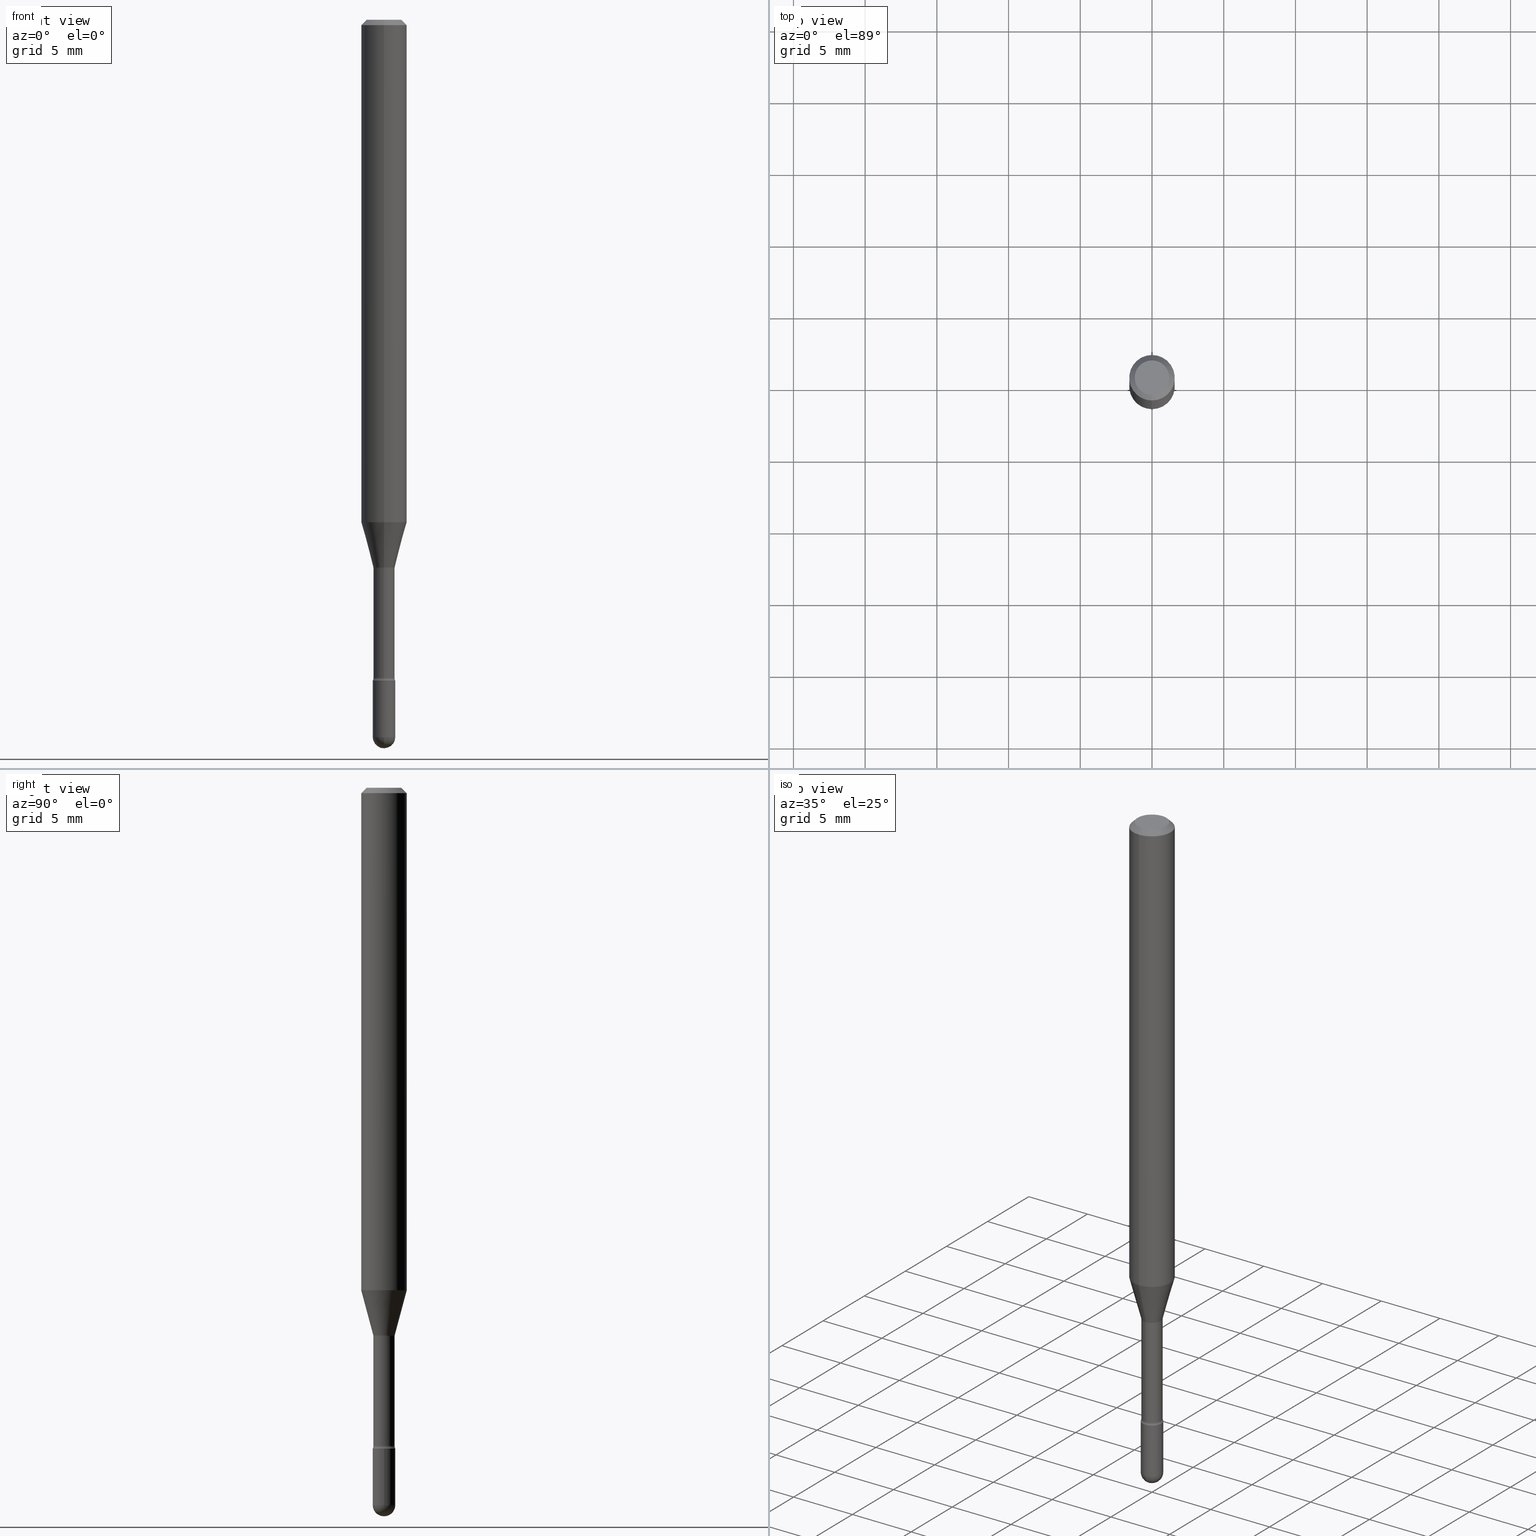
[diagram: canonical four-view strip — front | top / right | iso, engineering-drawing reading convention]
A machine part, canonical four-view strip (front | top / right | iso — engineering-drawing reading convention). The complete STEP part file that produces these views, byte-faithful:
ISO-10303-21;
HEADER;
FILE_DESCRIPTION (( 'STEP AP203' ),
    '1' );
FILE_NAME ('09811.STEP',
    '2024-04-10T01:41:04',
    ( '' ),
    ( '' ),
    'SwSTEP 2.0',
    'SolidWorks 2023',
    '' );
FILE_SCHEMA (( 'CONFIG_CONTROL_DESIGN' ));
ENDSEC;

DATA;
#1 = ADVANCED_FACE ( 'NONE', ( #394 ), #281, .T. ) ;
#2 = DIRECTION ( 'NONE',  ( -2.445468806185136597E-29, 3.491481338843145583E-15, 1.000000000000000000 ) ) ;
#3 = DIRECTION ( 'NONE',  ( -6.982962677686265922E-15, -1.000000000000000000, 3.491481724708022239E-15 ) ) ;
#4 = AXIS2_PLACEMENT_3D ( 'NONE', #178, #512, #491 ) ;
#5 = LOCAL_TIME ( 21, 41, 4.000000000000000000, #289 ) ;
#6 = APPROVAL_ROLE ( '' ) ;
#7 = PERSON_AND_ORGANIZATION_ROLE ( 'classification_officer' ) ;
#8 = MECHANICAL_CONTEXT ( 'NONE', #88, 'mechanical' ) ;
#9 = VECTOR ( 'NONE', #386, 39.37007874015748143 ) ;
#10 = VERTEX_POINT ( 'NONE', #444 ) ;
#11 = CARTESIAN_POINT ( 'NONE',  ( 4.440892098500625669E-16, 0.06250000000000000000, 2.598557910969947226E-16 ) ) ;
#12 = VERTEX_POINT ( 'NONE', #231 ) ;
#13 = ADVANCED_FACE ( 'NONE', ( #493 ), #363, .T. ) ;
#14 =( NAMED_UNIT ( * ) PLANE_ANGLE_UNIT ( ) SI_UNIT ( $, .RADIAN. ) );
#15 = UNCERTAINTY_MEASURE_WITH_UNIT (LENGTH_MEASURE( 1.000000000000000082E-05 ), #447, 'distance_accuracy_value', 'NONE');
#16 = ORIENTED_EDGE ( 'NONE', *, *, #404, .F. ) ;
#17 = CARTESIAN_POINT ( 'NONE',  ( 3.668202805105720472E-31, -5.237222587062061363E-17, -0.01500000000000008271 ) ) ;
#18 = APPLICATION_CONTEXT ( 'configuration controlled 3d designs of mechanical parts and assemblies' ) ;
#19 = ADVANCED_FACE ( 'NONE', ( #193 ), #467, .T. ) ;
#20 = CC_DESIGN_PERSON_AND_ORGANIZATION_ASSIGNMENT ( #372, #244, ( #488 ) ) ;
#21 = DIRECTION ( 'NONE',  ( -2.445468536737133447E-29, 3.491481724708021844E-15, 1.000000000000000000 ) ) ;
#22 = SPHERICAL_SURFACE ( 'NONE', #272, 0.03100000000000001019 ) ;
#23 = AXIS2_PLACEMENT_3D ( 'NONE', #448, #530, #64 ) ;
#24 = AXIS2_PLACEMENT_3D ( 'NONE', #435, #274, #35 ) ;
#25 = ORGANIZATION ( 'UNSPECIFIED', 'UNSPECIFIED', '' ) ;
#26 = CARTESIAN_POINT ( 'NONE',  ( 3.682813959862141921E-29, -5.258083448300944094E-15, -1.505974787463811193 ) ) ;
#27 = ORIENTED_EDGE ( 'NONE', *, *, #241, .F. ) ;
#28 = CARTESIAN_POINT ( 'NONE',  ( 4.815128079378534076E-29, -6.874726756182154000E-15, -1.969000000000000306 ) ) ;
#29 = EDGE_CURVE ( 'NONE', #126, #60, #77, .T. ) ;
#30 = DIRECTION ( 'NONE',  ( -2.445468536737133167E-29, 3.491481724708022239E-15, 1.000000000000000000 ) ) ;
#31 = DIRECTION ( 'NONE',  ( -6.982962677686266711E-15, -1.000000000000000000, 3.491481724708022633E-15 ) ) ;
#32 = AXIS2_PLACEMENT_3D ( 'NONE', #17, #71, #117 ) ;
#33 = AXIS2_PLACEMENT_3D ( 'NONE', #269, #2, #322 ) ;
#34 = FACE_OUTER_BOUND ( 'NONE', #120, .T. ) ;
#35 = DIRECTION ( 'NONE',  ( -6.982962677686267499E-15, -1.000000000000000000, 0.000000000000000000 ) ) ;
#36 = ORIENTED_EDGE ( 'NONE', *, *, #217, .T. ) ;
#37 = CARTESIAN_POINT ( 'NONE',  ( 3.682814365644040998E-29, -5.258082867198169507E-15, -1.505974787463811193 ) ) ;
#38 = ORIENTED_EDGE ( 'NONE', *, *, #350, .T. ) ;
#39 = EDGE_LOOP ( 'NONE', ( #45, #79, #156, #257 ) ) ;
#40 = CARTESIAN_POINT ( 'NONE',  ( 3.668202805105720472E-31, -5.237222587062061363E-17, -0.01500000000000008271 ) ) ;
#41 = AXIS2_PLACEMENT_3D ( 'NONE', #243, #310, #517 ) ;
#42 = CARTESIAN_POINT ( 'NONE',  ( 2.136957277798946103E-16, 0.02914999999999373301, -1.806783525791634704 ) ) ;
#43 = AXIS2_PLACEMENT_3D ( 'NONE', #167, #296, #415 ) ;
#44 = CIRCLE ( 'NONE', #113, 0.02914999999999999883 ) ;
#45 = ORIENTED_EDGE ( 'NONE', *, *, #509, .F. ) ;
#46 = FACE_OUTER_BOUND ( 'NONE', #303, .T. ) ;
#47 = CARTESIAN_POINT ( 'NONE',  ( 4.418432265018427708E-29, -6.308351660805017310E-15, -1.806783525791634704 ) ) ;
#48 = EDGE_CURVE ( 'NONE', #478, #12, #503, .T. ) ;
#49 = LINE ( 'NONE', #526, #187 ) ;
#50 = LENGTH_MEASURE_WITH_UNIT ( LENGTH_MEASURE( 0.02539999999999999897 ), #221 );
#51 = MANIFOLD_SOLID_BREP ( 'Body-Move/Copy2[1]', #214 ) ;
#52 = DIRECTION ( 'NONE',  ( 6.982962677686265922E-15, 1.000000000000000000, 0.000000000000000000 ) ) ;
#53 = CARTESIAN_POINT ( 'NONE',  ( -2.035533620545548103E-16, -0.02915000000000001965, 5.798500911664849019E-16 ) ) ;
#54 = APPROVAL_DATE_TIME ( #161, #440 ) ;
#55 = CIRCLE ( 'NONE', #410, 0.03099999999999999978 ) ;
#56 = LINE ( 'NONE', #534, #112 ) ;
#57 = DIRECTION ( 'NONE',  ( -2.445468536737133447E-29, 3.491481724708021844E-15, 1.000000000000000000 ) ) ;
#58 = ORIENTED_EDGE ( 'NONE', *, *, #195, .T. ) ;
#59 = DATE_AND_TIME ( #497, #249 ) ;
#60 = VERTEX_POINT ( 'NONE', #251 ) ;
#61 = DIRECTION ( 'NONE',  ( 1.839019923739594793E-15, 0.2588190451025241812, 0.9659258262890673130 ) ) ;
#62 = ORIENTED_EDGE ( 'NONE', *, *, #509, .T. ) ;
#63 = CC_DESIGN_DATE_AND_TIME_ASSIGNMENT ( #456, #107, ( #359 ) ) ;
#64 = DIRECTION ( 'NONE',  ( 1.000000000000000000, -6.982962677686266711E-15, 4.876176775795935232E-29 ) ) ;
#65 = PERSON_AND_ORGANIZATION ( #446, #25 ) ;
#66 = EDGE_CURVE ( 'NONE', #565, #60, #373, .T. ) ;
#67 = PERSON_AND_ORGANIZATION_ROLE ( 'design_owner' ) ;
#68 = VECTOR ( 'NONE', #547, 39.37007874015748143 ) ;
#69 = AXIS2_PLACEMENT_3D ( 'NONE', #546, #211, #382 ) ;
#70 = ORIENTED_EDGE ( 'NONE', *, *, #143, .T. ) ;
#71 = DIRECTION ( 'NONE',  ( -2.445468536737133447E-29, 3.491481724708021844E-15, 1.000000000000000000 ) ) ;
#72 = DIRECTION ( 'NONE',  ( -1.000000000000000000, 6.982962677686265922E-15, -4.883557194083112340E-29 ) ) ;
#73 = ORIENTED_EDGE ( 'NONE', *, *, #259, .T. ) ;
#74 = EDGE_CURVE ( 'NONE', #458, #429, #554, .T. ) ;
#75 = FACE_OUTER_BOUND ( 'NONE', #362, .T. ) ;
#76 = EDGE_LOOP ( 'NONE', ( #481, #170, #297, #529 ) ) ;
#77 = CIRCLE ( 'NONE', #32, 0.06250000000000000000 ) ;
#78 = CARTESIAN_POINT ( 'NONE',  ( 3.316907271900976096E-16, 0.04749999999999999362, 3.181781065051012070E-17 ) ) ;
#79 = ORIENTED_EDGE ( 'NONE', *, *, #74, .F. ) ;
#80 = ORIENTED_EDGE ( 'NONE', *, *, #237, .F. ) ;
#81 = DIRECTION ( 'NONE',  ( -6.982962677686265922E-15, -1.000000000000000000, 3.491481724708022239E-15 ) ) ;
#82 = DIRECTION ( 'NONE',  ( -6.982962677686265922E-15, -1.000000000000000000, 3.491481724708022239E-15 ) ) ;
#83 = ORIENTED_EDGE ( 'NONE', *, *, #237, .T. ) ;
#84 = DIRECTION ( 'NONE',  ( -6.982962677686265922E-15, -1.000000000000000000, 3.491481724708021844E-15 ) ) ;
#85 = AXIS2_PLACEMENT_3D ( 'NONE', #179, #391, #516 ) ;
#86 = LINE ( 'NONE', #53, #215 ) ;
#87 = CYLINDRICAL_SURFACE ( 'NONE', #292, 0.02915000000000001965 ) ;
#88 = APPLICATION_CONTEXT ( 'configuration controlled 3d designs of mechanical parts and assemblies' ) ;
#89 = ORIENTED_EDGE ( 'NONE', *, *, #29, .F. ) ;
#90 = DIRECTION ( 'NONE',  ( -2.445468536737133447E-29, 3.491481724708021844E-15, 1.000000000000000000 ) ) ;
#91 = DIRECTION ( 'NONE',  ( -6.982962677686265922E-15, -1.000000000000000000, 3.491481724708021844E-15 ) ) ;
#92 = AXIS2_PLACEMENT_3D ( 'NONE', #380, #474, #261 ) ;
#93 = ORIENTED_EDGE ( 'NONE', *, *, #334, .T. ) ;
#94 = DIRECTION ( 'NONE',  ( 7.105427357601001859E-15, 1.000000000000000000, 0.000000000000000000 ) ) ;
#95 = CARTESIAN_POINT ( 'NONE',  ( 4.440892098500961428E-16, 0.06249999999999515665, -1.379536105567578330 ) ) ;
#96 = ORIENTED_EDGE ( 'NONE', *, *, #464, .T. ) ;
#97 = CYLINDRICAL_SURFACE ( 'NONE', #23, 0.03099999999999999978 ) ;
#98 = ORIENTED_EDGE ( 'NONE', *, *, #130, .T. ) ;
#99 = ADVANCED_BREP_SHAPE_REPRESENTATION ( '09811', ( #51, #252, #300 ), #154 ) ;
#100 = VECTOR ( 'NONE', #425, 39.37007874015748143 ) ;
#101 = CARTESIAN_POINT ( 'NONE',  ( 4.436080414419837365E-29, -6.333547148661465016E-15, -1.813999999999999835 ) ) ;
#102 = APPROVAL_PERSON_ORGANIZATION ( #65, #321, #329 ) ;
#103 = DIRECTION ( 'NONE',  ( -6.982962677686265922E-15, -1.000000000000000000, 0.000000000000000000 ) ) ;
#104 = COORDINATED_UNIVERSAL_TIME_OFFSET ( 5, 0, .BEHIND. ) ;
#105 = DIRECTION ( 'NONE',  ( -2.438088387897960049E-29, 3.491481338843145188E-15, 1.000000000000000000 ) ) ;
#106 = CARTESIAN_POINT ( 'NONE',  ( 4.364351673553919652E-16, 0.06249999999999995143, -0.01500000000000030129 ) ) ;
#107 = DATE_TIME_ROLE ( 'classification_date' ) ;
#108 = EDGE_CURVE ( 'NONE', #181, #260, #523, .T. ) ;
#109 = VERTEX_POINT ( 'NONE', #42 ) ;
#110 = DIRECTION ( 'NONE',  ( 1.000000000000000000, -6.982962677686266711E-15, 4.876176775795935232E-29 ) ) ;
#111 = PERSON_AND_ORGANIZATION ( #446, #25 ) ;
#112 = VECTOR ( 'NONE', #61, 39.37007874015748854 ) ;
#113 = AXIS2_PLACEMENT_3D ( 'NONE', #26, #473, #258 ) ;
#114 = ADVANCED_FACE ( 'NONE', ( #132 ), #538, .F. ) ;
#115 = CARTESIAN_POINT ( 'NONE',  ( -4.364351673553580935E-16, -0.06250000000000484335, -1.379536105567577886 ) ) ;
#116 = DIRECTION ( 'NONE',  ( -6.982962677686265922E-15, -1.000000000000000000, 3.491481724708021844E-15 ) ) ;
#117 = DIRECTION ( 'NONE',  ( -6.982962677686265922E-15, -1.000000000000000000, 3.483106191921935554E-15 ) ) ;
#118 = CARTESIAN_POINT ( 'NONE',  ( 4.815128079378533515E-29, -6.874726756182153211E-15, -1.968999999999999861 ) ) ;
#119 = CARTESIAN_POINT ( 'NONE',  ( 0.03099999999999999978, -2.164718430082742572E-16, 1.511614800496739984E-30 ) ) ;
#120 = EDGE_LOOP ( 'NONE', ( #325, #73, #550, #353 ) ) ;
#121 = EDGE_LOOP ( 'NONE', ( #270, #83 ) ) ;
#122 = DIRECTION ( 'NONE',  ( -2.445468536737133447E-29, 3.491481724708021844E-15, 1.000000000000000000 ) ) ;
#123 = ORIENTED_EDGE ( 'NONE', *, *, #48, .F. ) ;
#124 = AXIS2_PLACEMENT_3D ( 'NONE', #304, #314, #3 ) ;
#125 = CC_DESIGN_APPROVAL ( #440, ( #230 ) ) ;
#126 = VERTEX_POINT ( 'NONE', #273 ) ;
#127 = ADVANCED_FACE ( 'NONE', ( #227 ), #268, .T. ) ;
#128 = CARTESIAN_POINT ( 'NONE',  ( 2.164718430083186060E-16, 0.03099999999999366457, -1.813999999999999835 ) ) ;
#129 = FACE_OUTER_BOUND ( 'NONE', #445, .T. ) ;
#130 = EDGE_CURVE ( 'NONE', #260, #126, #505, .T. ) ;
#131 = AXIS2_PLACEMENT_3D ( 'NONE', #256, #122, #343 ) ;
#132 = FACE_OUTER_BOUND ( 'NONE', #450, .T. ) ;
#133 = ORIENTED_EDGE ( 'NONE', *, *, #226, .F. ) ;
#134 = DIRECTION ( 'NONE',  ( -2.445468536737133447E-29, 3.491481724708021844E-15, 1.000000000000000000 ) ) ;
#135 = EDGE_CURVE ( 'NONE', #390, #412, #168, .T. ) ;
#136 = ORIENTED_EDGE ( 'NONE', *, *, #350, .F. ) ;
#137 = ORIENTED_EDGE ( 'NONE', *, *, #108, .T. ) ;
#138 = EDGE_CURVE ( 'NONE', #260, #181, #205, .T. ) ;
#139 = CARTESIAN_POINT ( 'NONE',  ( -2.035533620545178324E-16, -0.02915000000000525851, -1.505974787463811193 ) ) ;
#140 = AXIS2_PLACEMENT_3D ( 'NONE', #340, #262, #31 ) ;
#141 = CIRCLE ( 'NONE', #33, 0.03099999999999999978 ) ;
#142 = FACE_OUTER_BOUND ( 'NONE', #39, .T. ) ;
#143 = EDGE_CURVE ( 'NONE', #223, #109, #436, .T. ) ;
#144 = ORIENTED_EDGE ( 'NONE', *, *, #337, .F. ) ;
#145 =( NAMED_UNIT ( * ) SI_UNIT ( $, .STERADIAN. ) SOLID_ANGLE_UNIT ( ) );
#146 = DIRECTION ( 'NONE',  ( -6.982962677686266711E-15, -1.000000000000000000, 0.000000000000000000 ) ) ;
#147 = CARTESIAN_POINT ( 'NONE',  ( 3.673319952389542966E-29, -5.244528518811216115E-15, -1.502092501787273271 ) ) ;
#148 = VERTEX_POINT ( 'NONE', #403 ) ;
#149 = COORDINATED_UNIVERSAL_TIME_OFFSET ( 5, 0, .BEHIND. ) ;
#150 = CARTESIAN_POINT ( 'NONE',  ( 3.840629472727447874E-16, 0.04749999999999999362, -2.485923956665947867E-16 ) ) ;
#151 = EDGE_CURVE ( 'NONE', #419, #148, #196, .T. ) ;
#152 = AXIS2_PLACEMENT_3D ( 'NONE', #564, #320, #489 ) ;
#153 = DIRECTION ( 'NONE',  ( 1.000000000000000000, 0.000000000000000000, 0.000000000000000000 ) ) ;
#154 =( GEOMETRIC_REPRESENTATION_CONTEXT ( 3 ) GLOBAL_UNCERTAINTY_ASSIGNED_CONTEXT ( ( #15 ) ) GLOBAL_UNIT_ASSIGNED_CONTEXT ( ( #447, #14, #145 ) ) REPRESENTATION_CONTEXT ( 'NONE', 'WORKASPACE' ) );
#155 = APPROVAL_PERSON_ORGANIZATION ( #324, #160, #500 ) ;
#156 = ORIENTED_EDGE ( 'NONE', *, *, #337, .T. ) ;
#157 = EDGE_CURVE ( 'NONE', #390, #413, #291, .T. ) ;
#158 = APPROVAL_STATUS ( 'not_yet_approved' ) ;
#159 = EDGE_LOOP ( 'NONE', ( #511, #307, #360, #136 ) ) ;
#160 = APPROVAL ( #327, 'UNSPECIFIED' ) ;
#161 = DATE_AND_TIME ( #452, #541 ) ;
#162 = ORIENTED_EDGE ( 'NONE', *, *, #277, .F. ) ;
#163 = ORIENTED_EDGE ( 'NONE', *, *, #464, .F. ) ;
#164 = AXIS2_PLACEMENT_3D ( 'NONE', #454, #451, #239 ) ;
#165 = AXIS2_PLACEMENT_3D ( 'NONE', #551, #549, #116 ) ;
#166 = CARTESIAN_POINT ( 'NONE',  ( 3.373612141458388691E-29, -4.816625101164075129E-15, -1.379536105567578108 ) ) ;
#167 = CARTESIAN_POINT ( 'NONE',  ( 4.815128079378533515E-29, -6.874726756182153211E-15, -1.968999999999999861 ) ) ;
#168 = LINE ( 'NONE', #119, #449 ) ;
#169 = FACE_OUTER_BOUND ( 'NONE', #159, .T. ) ;
#170 = ORIENTED_EDGE ( 'NONE', *, *, #177, .T. ) ;
#171 = DIRECTION ( 'NONE',  ( -1.000000000000000000, 6.982962677686265922E-15, -4.883557194083112340E-29 ) ) ;
#172 = DIRECTION ( 'NONE',  ( -2.445468806185136877E-29, 3.491481338843145188E-15, 1.000000000000000000 ) ) ;
#173 = ORIENTED_EDGE ( 'NONE', *, *, #475, .T. ) ;
#174 = AXIS2_PLACEMENT_3D ( 'NONE', #228, #559, #308 ) ;
#175 = CARTESIAN_POINT ( 'NONE',  ( 4.418432751852640684E-29, -6.308350963630715621E-15, -1.806783525791634704 ) ) ;
#176 = DIRECTION ( 'NONE',  ( 2.445468536737133167E-29, -3.491481724708022239E-15, -1.000000000000000000 ) ) ;
#177 = EDGE_CURVE ( 'NONE', #429, #565, #56, .T. ) ;
#178 = CARTESIAN_POINT ( 'NONE',  ( 3.137046178381287658E-16, 0.04414999999999374980, -1.806783525791634926 ) ) ;
#179 = CARTESIAN_POINT ( 'NONE',  ( 4.436079925641159659E-29, -6.333547848620351038E-15, -1.813999999999999835 ) ) ;
#180 = AXIS2_PLACEMENT_3D ( 'NONE', #78, #176, #421 ) ;
#181 = VERTEX_POINT ( 'NONE', #150 ) ;
#182 = DIRECTION ( 'NONE',  ( -1.807323732225324617E-15, -0.2588190451025174088, 0.9659258262890690894 ) ) ;
#183 = ORIENTED_EDGE ( 'NONE', *, *, #277, .T. ) ;
#184 = CARTESIAN_POINT ( 'NONE',  ( 0.03099999999999999978, -6.550018991669739348E-15, -1.813999999999999835 ) ) ;
#185 = CARTESIAN_POINT ( 'NONE',  ( 3.137046178381209758E-16, 0.04414999999999474206, -1.505974787463811415 ) ) ;
#186 = DIRECTION ( 'NONE',  ( -2.445468806185136597E-29, 3.491481338843145583E-15, 1.000000000000000000 ) ) ;
#187 = VECTOR ( 'NONE', #275, 39.37007874015748143 ) ;
#188 = CIRCLE ( 'NONE', #504, 0.02915000000000004046 ) ;
#189 = LINE ( 'NONE', #220, #508 ) ;
#190 = ORIENTED_EDGE ( 'NONE', *, *, #393, .T. ) ;
#191 = CC_DESIGN_PERSON_AND_ORGANIZATION_ASSIGNMENT ( #240, #7, ( #359 ) ) ;
#192 = DIRECTION ( 'NONE',  ( 0.000000000000000000, 0.000000000000000000, 1.000000000000000000 ) ) ;
#193 = FACE_OUTER_BOUND ( 'NONE', #376, .T. ) ;
#194 = CALENDAR_DATE ( 2024, 9, 4 ) ;
#195 = EDGE_CURVE ( 'NONE', #181, #60, #408, .T. ) ;
#196 = CIRCLE ( 'NONE', #384, 0.03100000000000001019 ) ;
#197 = FACE_OUTER_BOUND ( 'NONE', #276, .T. ) ;
#198 = CIRCLE ( 'NONE', #555, 0.01500000000000001853 ) ;
#199 = PERSON_AND_ORGANIZATION ( #446, #25 ) ;
#200 = DIRECTION ( 'NONE',  ( -6.982962677686265922E-15, -1.000000000000000000, 0.000000000000000000 ) ) ;
#201 = EDGE_LOOP ( 'NONE', ( #290, #323 ) ) ;
#202 = DIRECTION ( 'NONE',  ( 1.000000000000000000, -6.982962677686270655E-15, 0.000000000000000000 ) ) ;
#203 = EDGE_CURVE ( 'NONE', #148, #390, #398, .T. ) ;
#204 = DIRECTION ( 'NONE',  ( -2.445468536737133447E-29, 3.491481724708021844E-15, 1.000000000000000000 ) ) ;
#205 = CIRCLE ( 'NONE', #140, 0.04749999999999999362 ) ;
#206 = DIRECTION ( 'NONE',  ( -6.982962677686265922E-15, -1.000000000000000000, 4.370956789862821150E-15 ) ) ;
#207 = CARTESIAN_POINT ( 'NONE',  ( -0.03099999999999999978, -6.383868704336178649E-15, -1.969000000000000306 ) ) ;
#208 = PLANE ( 'NONE',  #180 ) ;
#209 = VERTEX_POINT ( 'NONE', #115 ) ;
#210 = ADVANCED_FACE ( 'NONE', ( #197 ), #97, .T. ) ;
#211 = DIRECTION ( 'NONE',  ( -2.445468536737133447E-29, 3.491481724708021844E-15, 1.000000000000000000 ) ) ;
#212 = ORIENTED_EDGE ( 'NONE', *, *, #157, .T. ) ;
#213 = CARTESIAN_POINT ( 'NONE',  ( -4.364351673553916201E-16, -0.06250000000000000000, 6.962910066854974038E-16 ) ) ;
#214 = CLOSED_SHELL ( 'NONE', ( #210, #245, #13, #298, #19 ) ) ;
#215 = VECTOR ( 'NONE', #490, 39.37007874015748143 ) ;
#216 = ORIENTED_EDGE ( 'NONE', *, *, #404, .T. ) ;
#217 = EDGE_CURVE ( 'NONE', #109, #12, #49, .T. ) ;
#218 = CARTESIAN_POINT ( 'NONE',  ( 4.436079925641159659E-29, -6.333547848620351038E-15, -1.813999999999999835 ) ) ;
#219 = CARTESIAN_POINT ( 'NONE',  ( 4.815128079378533515E-29, -6.874726756182153211E-15, -1.968999999999999861 ) ) ;
#220 = CARTESIAN_POINT ( 'NONE',  ( -2.071224423039644956E-16, -0.02966111260566922994, -1.502092501787273271 ) ) ;
#221 =( LENGTH_UNIT ( ) NAMED_UNIT ( * ) SI_UNIT ( $, .METRE. ) );
#222 = AXIS2_PLACEMENT_3D ( 'NONE', #101, #105, #370 ) ;
#223 = VERTEX_POINT ( 'NONE', #229 ) ;
#224 = DIRECTION ( 'NONE',  ( -2.445468536737133447E-29, 3.491481724708021844E-15, 1.000000000000000000 ) ) ;
#225 = DIRECTION ( 'NONE',  ( 1.000000000000000000, -6.982962677686270655E-15, 0.000000000000000000 ) ) ;
#226 = EDGE_CURVE ( 'NONE', #412, #10, #234, .T. ) ;
#227 = FACE_OUTER_BOUND ( 'NONE', #531, .T. ) ;
#228 = CARTESIAN_POINT ( 'NONE',  ( 3.673319952389542966E-29, -5.244528518811216115E-15, -1.502092501787273271 ) ) ;
#229 = CARTESIAN_POINT ( 'NONE',  ( -2.035533620545107573E-16, -0.02915000000000635139, -1.806783525791634704 ) ) ;
#230 = PRODUCT_DEFINITION ( 'UNKNOWN', '', #488, #406 ) ;
#231 = CARTESIAN_POINT ( 'NONE',  ( 2.071232074741134707E-16, 0.02914999999999473915, -1.505974787463811193 ) ) ;
#232 = ORIENTED_EDGE ( 'NONE', *, *, #434, .T. ) ;
#233 = CARTESIAN_POINT ( 'NONE',  ( 4.815128079378533515E-29, -6.874726756182153211E-15, -1.968999999999999861 ) ) ;
#234 = CIRCLE ( 'NONE', #254, 0.03099999999999999978 ) ;
#235 = AXIS2_PLACEMENT_3D ( 'NONE', #566, #224, #317 ) ;
#236 = CC_DESIGN_SECURITY_CLASSIFICATION ( #359, ( #488 ) ) ;
#237 = EDGE_CURVE ( 'NONE', #10, #412, #560, .T. ) ;
#238 = DATE_AND_TIME ( #536, #472 ) ;
#239 = DIRECTION ( 'NONE',  ( 1.000000000000000000, -6.982962677686270655E-15, 0.000000000000000000 ) ) ;
#240 = PERSON_AND_ORGANIZATION ( #446, #25 ) ;
#241 = EDGE_CURVE ( 'NONE', #565, #209, #392, .T. ) ;
#242 = ORIENTED_EDGE ( 'NONE', *, *, #515, .F. ) ;
#243 = CARTESIAN_POINT ( 'NONE',  ( 2.023550898014503971E-45, -2.889098707294543199E-31, -8.274701374296373924E-17 ) ) ;
#244 = PERSON_AND_ORGANIZATION_ROLE ( 'creator' ) ;
#245 = ADVANCED_FACE ( 'NONE', ( #342 ), #557, .T. ) ;
#246 = VECTOR ( 'NONE', #499, 39.37007874015748143 ) ;
#247 = AXIS2_PLACEMENT_3D ( 'NONE', #351, #134, #522 ) ;
#248 = PERSON_AND_ORGANIZATION ( #446, #25 ) ;
#249 = LOCAL_TIME ( 21, 41, 4.000000000000000000, #104 ) ;
#250 = VERTEX_POINT ( 'NONE', #431 ) ;
#251 = CARTESIAN_POINT ( 'NONE',  ( 4.440892098500965372E-16, 0.06249999999999995837, -0.01500000000000030129 ) ) ;
#252 = MANIFOLD_SOLID_BREP ( 'Body-Move/Copy2[2]', #377 ) ;
#253 = CARTESIAN_POINT ( 'NONE',  ( 0.03099999999999999978, -6.820608795430084234E-15, -1.969000000000000306 ) ) ;
#254 = AXIS2_PLACEMENT_3D ( 'NONE', #397, #186, #225 ) ;
#255 = AXIS2_PLACEMENT_3D ( 'NONE', #514, #480, #524 ) ;
#256 = CARTESIAN_POINT ( 'NONE',  ( -1.169113584055446105E-44, 1.669184350826100908E-30, 4.780733988912460139E-16 ) ) ;
#257 = ORIENTED_EDGE ( 'NONE', *, *, #48, .T. ) ;
#258 = DIRECTION ( 'NONE',  ( -6.982962677686265922E-15, -1.000000000000000000, 0.000000000000000000 ) ) ;
#259 = EDGE_CURVE ( 'NONE', #109, #250, #348, .T. ) ;
#260 = VERTEX_POINT ( 'NONE', #402 ) ;
#261 = DIRECTION ( 'NONE',  ( -6.982962677686265922E-15, -1.000000000000000000, 3.483106191921935554E-15 ) ) ;
#262 = DIRECTION ( 'NONE',  ( -2.445468536737133447E-29, 3.491481724708021844E-15, 1.000000000000000000 ) ) ;
#263 = DIRECTION ( 'NONE',  ( 1.000000000000000000, -6.982962677686270655E-15, 0.000000000000000000 ) ) ;
#264 = AXIS2_PLACEMENT_3D ( 'NONE', #219, #305, #52 ) ;
#265 = ADVANCED_FACE ( 'NONE', ( #34 ), #299, .F. ) ;
#266 = DIRECTION ( 'NONE',  ( 6.982962677686265922E-15, 1.000000000000000000, -3.483106191921935554E-15 ) ) ;
#267 = ORIENTED_EDGE ( 'NONE', *, *, #195, .F. ) ;
#268 = CYLINDRICAL_SURFACE ( 'NONE', #318, 0.06250000000000000000 ) ;
#269 = CARTESIAN_POINT ( 'NONE',  ( 4.815128079378534076E-29, -6.874726756182154000E-15, -1.969000000000000306 ) ) ;
#270 = ORIENTED_EDGE ( 'NONE', *, *, #226, .T. ) ;
#271 = CARTESIAN_POINT ( 'NONE',  ( -2.071224423039644956E-16, -0.02966111260566922994, -1.502092501787273271 ) ) ;
#272 = AXIS2_PLACEMENT_3D ( 'NONE', #118, #171, #301 ) ;
#273 = CARTESIAN_POINT ( 'NONE',  ( -4.364351673553912750E-16, -0.06250000000000005551, -0.01499999999999986587 ) ) ;
#274 = DIRECTION ( 'NONE',  ( -1.000000000000000000, 6.982962677686265922E-15, -4.883557194083112340E-29 ) ) ;
#275 = DIRECTION ( 'NONE',  ( -2.445468536737133447E-29, 3.491481724708022239E-15, 1.000000000000000000 ) ) ;
#276 = EDGE_LOOP ( 'NONE', ( #96, #183, #133, #341, #212 ) ) ;
#277 = EDGE_CURVE ( 'NONE', #282, #10, #418, .T. ) ;
#278 = COORDINATED_UNIVERSAL_TIME_OFFSET ( 5, 0, .BEHIND. ) ;
#279 = ORIENTED_EDGE ( 'NONE', *, *, #306, .T. ) ;
#280 = DIRECTION ( 'NONE',  ( -7.105427357601001070E-15, -1.000000000000000000, 0.000000000000000000 ) ) ;
#281 = CONICAL_SURFACE ( 'NONE', #152, 0.06250000000000000000, 0.7853981633974483900 ) ;
#282 = VERTEX_POINT ( 'NONE', #207 ) ;
#283 = CONICAL_SURFACE ( 'NONE', #255, 0.02966111260566398414, 0.2617993877991495189 ) ;
#284 = APPLICATION_PROTOCOL_DEFINITION ( 'international standard', 'config_control_design', 1994, #18 ) ;
#285 = SECURITY_CLASSIFICATION_LEVEL ( 'unclassified' ) ;
#286 = ORIENTED_EDGE ( 'NONE', *, *, #241, .T. ) ;
#287 = DIRECTION ( 'NONE',  ( -2.445468806185136597E-29, 3.491481338843145583E-15, 1.000000000000000000 ) ) ;
#288 = EDGE_LOOP ( 'NONE', ( #70, #36, #123, #242 ) ) ;
#289 = COORDINATED_UNIVERSAL_TIME_OFFSET ( 5, 0, .BEHIND. ) ;
#290 = ORIENTED_EDGE ( 'NONE', *, *, #548, .F. ) ;
#291 = CIRCLE ( 'NONE', #164, 0.03099999999999999978 ) ;
#292 = AXIS2_PLACEMENT_3D ( 'NONE', #563, #90, #354 ) ;
#293 = SHAPE_DEFINITION_REPRESENTATION ( #420, #99 ) ;
#294 = DIRECTION ( 'NONE',  ( -2.445468806185136597E-29, 3.491481338843145583E-15, 1.000000000000000000 ) ) ;
#295 = EDGE_CURVE ( 'NONE', #250, #312, #332, .T. ) ;
#296 = DIRECTION ( 'NONE',  ( 1.000000000000000000, -6.982962677686265922E-15, 4.883557194083112340E-29 ) ) ;
#297 = ORIENTED_EDGE ( 'NONE', *, *, #393, .F. ) ;
#298 = ADVANCED_FACE ( 'NONE', ( #129 ), #22, .T. ) ;
#299 = TOROIDAL_SURFACE ( 'NONE', #385, 0.04415000000000005725, 0.01500000000000001853 ) ;
#300 = AXIS2_PLACEMENT_3D ( 'NONE', #492, #192, #153 ) ;
#301 = DIRECTION ( 'NONE',  ( 6.982962677686265922E-15, 1.000000000000000000, 0.000000000000000000 ) ) ;
#302 = CYLINDRICAL_SURFACE ( 'NONE', #131, 0.02915000000000001965 ) ;
#303 = EDGE_LOOP ( 'NONE', ( #407, #544, #232, #27 ) ) ;
#304 = CARTESIAN_POINT ( 'NONE',  ( -1.169113584055446105E-44, 1.669184350826100908E-30, 4.780733988912460139E-16 ) ) ;
#305 = DIRECTION ( 'NONE',  ( -1.000000000000000000, 6.982962677686265922E-15, -4.883557194083112340E-29 ) ) ;
#306 = EDGE_CURVE ( 'NONE', #419, #413, #416, .T. ) ;
#307 = ORIENTED_EDGE ( 'NONE', *, *, #533, .T. ) ;
#308 = DIRECTION ( 'NONE',  ( -6.982962677686265922E-15, -1.000000000000000000, 0.000000000000000000 ) ) ;
#309 = AXIS2_PLACEMENT_3D ( 'NONE', #166, #21, #206 ) ;
#310 = DIRECTION ( 'NONE',  ( -2.445468536737133447E-29, 3.491481724708021844E-15, 1.000000000000000000 ) ) ;
#311 = DIRECTION ( 'NONE',  ( -2.445468536737133447E-29, 3.491481724708021844E-15, 1.000000000000000000 ) ) ;
#312 = VERTEX_POINT ( 'NONE', #510 ) ;
#313 = ORIENTED_EDGE ( 'NONE', *, *, #259, .F. ) ;
#314 = DIRECTION ( 'NONE',  ( -2.445468536737133447E-29, 3.491481724708021844E-15, 1.000000000000000000 ) ) ;
#315 = ORIENTED_EDGE ( 'NONE', *, *, #548, .T. ) ;
#316 = ADVANCED_FACE ( 'NONE', ( #558 ), #506, .F. ) ;
#317 = DIRECTION ( 'NONE',  ( -6.982962677686265922E-15, -1.000000000000000000, 3.491481724708021844E-15 ) ) ;
#318 = AXIS2_PLACEMENT_3D ( 'NONE', #395, #422, #82 ) ;
#319 = TOROIDAL_SURFACE ( 'NONE', #165, 0.04415000000000005725, 0.01500000000000001853 ) ;
#320 = DIRECTION ( 'NONE',  ( 2.445468536737133447E-29, -3.491481724708021844E-15, -1.000000000000000000 ) ) ;
#321 = APPROVAL ( #158, 'UNSPECIFIED' ) ;
#322 = DIRECTION ( 'NONE',  ( 1.000000000000000000, -6.982962677686270655E-15, 0.000000000000000000 ) ) ;
#323 = ORIENTED_EDGE ( 'NONE', *, *, #295, .F. ) ;
#324 = PERSON_AND_ORGANIZATION ( #446, #25 ) ;
#325 = ORIENTED_EDGE ( 'NONE', *, *, #533, .F. ) ;
#326 = CIRCLE ( 'NONE', #85, 0.03099999999999999978 ) ;
#327 = APPROVAL_STATUS ( 'not_yet_approved' ) ;
#328 = DIMENSIONAL_EXPONENTS ( 1.000000000000000000, 0.000000000000000000, 0.000000000000000000, 0.000000000000000000, 0.000000000000000000, 0.000000000000000000, 0.000000000000000000 ) ;
#329 = APPROVAL_ROLE ( '' ) ;
#330 = APPROVAL_DATE_TIME ( #59, #160 ) ;
#331 = CC_DESIGN_PERSON_AND_ORGANIZATION_ASSIGNMENT ( #199, #67, ( #496 ) ) ;
#332 = CIRCLE ( 'NONE', #439, 0.03099999999999999978 ) ;
#333 = ADVANCED_FACE ( 'NONE', ( #169 ), #302, .T. ) ;
#334 = EDGE_CURVE ( 'NONE', #209, #126, #468, .T. ) ;
#335 = CARTESIAN_POINT ( 'NONE',  ( -0.03099999999999999978, 2.202682480856310560E-16, -1.524869877979020612E-30 ) ) ;
#336 = CC_DESIGN_PERSON_AND_ORGANIZATION_ASSIGNMENT ( #528, #401, ( #230 ) ) ;
#337 = EDGE_CURVE ( 'NONE', #458, #478, #198, .T. ) ;
#338 = CIRCLE ( 'NONE', #24, 0.01500000000000001853 ) ;
#339 = DIRECTION ( 'NONE',  ( -2.445468536737133447E-29, 3.491481724708021844E-15, 1.000000000000000000 ) ) ;
#340 = CARTESIAN_POINT ( 'NONE',  ( 2.023550898014503971E-45, -2.889098707294543199E-31, -8.274701374296373924E-17 ) ) ;
#341 = ORIENTED_EDGE ( 'NONE', *, *, #135, .F. ) ;
#342 = FACE_OUTER_BOUND ( 'NONE', #400, .T. ) ;
#343 = DIRECTION ( 'NONE',  ( -6.982962677686266711E-15, -1.000000000000000000, 3.491481724708020661E-15 ) ) ;
#344 = DIRECTION ( 'NONE',  ( -6.982962677686265922E-15, -1.000000000000000000, 0.000000000000000000 ) ) ;
#345 = ORIENTED_EDGE ( 'NONE', *, *, #138, .T. ) ;
#346 = CC_DESIGN_PERSON_AND_ORGANIZATION_ASSIGNMENT ( #248, #543, ( #488 ) ) ;
#347 = FACE_OUTER_BOUND ( 'NONE', #76, .T. ) ;
#348 = CIRCLE ( 'NONE', #4, 0.01500000000000001853 ) ;
#349 = CC_DESIGN_APPROVAL ( #160, ( #488 ) ) ;
#350 = EDGE_CURVE ( 'NONE', #12, #478, #44, .T. ) ;
#351 = CARTESIAN_POINT ( 'NONE',  ( 3.673319952389542966E-29, -5.244528518811216115E-15, -1.502092501787273271 ) ) ;
#352 = ADVANCED_FACE ( 'NONE', ( #75 ), #208, .F. ) ;
#353 = ORIENTED_EDGE ( 'NONE', *, *, #475, .F. ) ;
#354 = DIRECTION ( 'NONE',  ( -6.982962677686266711E-15, -1.000000000000000000, 3.491481724708020661E-15 ) ) ;
#355 = CC_DESIGN_DATE_AND_TIME_ASSIGNMENT ( #238, #532, ( #230 ) ) ;
#356 = DIRECTION ( 'NONE',  ( 1.000000000000000000, -7.105427357601001070E-15, 4.926315513267563992E-29 ) ) ;
#357 = AXIS2_PLACEMENT_3D ( 'NONE', #37, #483, #91 ) ;
#358 = CONICAL_SURFACE ( 'NONE', #247, 0.02966111260566398414, 0.2617993877991495189 ) ;
#359 = SECURITY_CLASSIFICATION ( '', '', #285 ) ;
#360 = ORIENTED_EDGE ( 'NONE', *, *, #515, .T. ) ;
#361 = EDGE_LOOP ( 'NONE', ( #455, #98, #553, #267 ) ) ;
#362 = EDGE_LOOP ( 'NONE', ( #137, #345 ) ) ;
#363 = PLANE ( 'NONE',  #222 ) ;
#364 = CARTESIAN_POINT ( 'NONE',  ( 0.000000000000000000, 0.000000000000000000, 0.000000000000000000 ) ) ;
#365 = APPROVAL_STATUS ( 'not_yet_approved' ) ;
#366 = AXIS2_PLACEMENT_3D ( 'NONE', #147, #57, #200 ) ;
#367 = CIRCLE ( 'NONE', #92, 0.06250000000000000000 ) ;
#368 = LOCAL_TIME ( 21, 41, 4.000000000000000000, #369 ) ;
#369 = COORDINATED_UNIVERSAL_TIME_OFFSET ( 5, 0, .BEHIND. ) ;
#370 = DIRECTION ( 'NONE',  ( 1.000000000000000000, -6.982962677686265922E-15, 4.876176775795935793E-29 ) ) ;
#371 = DIRECTION ( 'NONE',  ( 4.937700262164548042E-15, 0.7071067811865451302, -0.7071067811865499042 ) ) ;
#372 = PERSON_AND_ORGANIZATION ( #446, #25 ) ;
#373 = LINE ( 'NONE', #11, #246 ) ;
#374 = ADVANCED_FACE ( 'NONE', ( #469 ), #319, .F. ) ;
#375 = DIRECTION ( 'NONE',  ( -2.445468806185136597E-29, 3.491481338843145583E-15, 1.000000000000000000 ) ) ;
#376 = EDGE_LOOP ( 'NONE', ( #162, #441, #485, #476, #80 ) ) ;
#377 = CLOSED_SHELL ( 'NONE', ( #114, #426, #265, #520, #409, #430, #443, #127, #1, #352, #316, #374, #333, #457 ) ) ;
#378 = CIRCLE ( 'NONE', #174, 0.02966111260566398414 ) ;
#379 = DIRECTION ( 'NONE',  ( -6.982962677686267499E-15, -1.000000000000000000, 0.000000000000000000 ) ) ;
#380 = CARTESIAN_POINT ( 'NONE',  ( 3.668202805105720472E-31, -5.237222587062061363E-17, -0.01500000000000008271 ) ) ;
#381 = ORIENTED_EDGE ( 'NONE', *, *, #151, .T. ) ;
#382 = DIRECTION ( 'NONE',  ( -6.982962677686265922E-15, -1.000000000000000000, 4.370956789862821150E-15 ) ) ;
#383 = EDGE_CURVE ( 'NONE', #282, #148, #55, .T. ) ;
#384 = AXIS2_PLACEMENT_3D ( 'NONE', #233, #495, #280 ) ;
#385 = AXIS2_PLACEMENT_3D ( 'NONE', #175, #339, #84 ) ;
#386 = DIRECTION ( 'NONE',  ( -2.445468536737133447E-29, 3.491481724708022239E-15, 1.000000000000000000 ) ) ;
#387 = CARTESIAN_POINT ( 'NONE',  ( -3.082978022198118430E-16, -0.04415000000000526142, -1.505974787463810971 ) ) ;
#388 = DIRECTION ( 'NONE',  ( -2.445468536737133447E-29, 3.491481724708021844E-15, 1.000000000000000000 ) ) ;
#389 = CARTESIAN_POINT ( 'NONE',  ( 3.274220454076509529E-16, 0.02966111260565873833, -1.502092501787273271 ) ) ;
#390 = VERTEX_POINT ( 'NONE', #253 ) ;
#391 = DIRECTION ( 'NONE',  ( -2.445468536737133447E-29, 3.491481724708021844E-15, 1.000000000000000000 ) ) ;
#392 = CIRCLE ( 'NONE', #309, 0.06250000000000000000 ) ;
#393 = EDGE_CURVE ( 'NONE', #209, #565, #498, .T. ) ;
#394 = FACE_OUTER_BOUND ( 'NONE', #540, .T. ) ;
#395 = CARTESIAN_POINT ( 'NONE',  ( -1.169113584055446105E-44, 1.669184350826100908E-30, 4.780733988912460139E-16 ) ) ;
#396 = CARTESIAN_POINT ( 'NONE',  ( 4.892263120118500713E-29, -6.981064475147612310E-15, -2.000000000000000000 ) ) ;
#397 = CARTESIAN_POINT ( 'NONE',  ( 4.436080414419837365E-29, -6.333547148661465016E-15, -1.813999999999999835 ) ) ;
#398 = CIRCLE ( 'NONE', #479, 0.03099999999999999978 ) ;
#399 = APPROVAL_PERSON_ORGANIZATION ( #111, #440, #6 ) ;
#400 = EDGE_LOOP ( 'NONE', ( #527, #381, #494, #163 ) ) ;
#401 = PERSON_AND_ORGANIZATION_ROLE ( 'creator' ) ;
#402 = CARTESIAN_POINT ( 'NONE',  ( -3.773273898774340269E-16, -0.04749999999999999362, 8.309836818066729589E-17 ) ) ;
#403 = CARTESIAN_POINT ( 'NONE',  ( -2.202682480855828862E-16, -0.03100000000000687969, -1.969000000000000306 ) ) ;
#404 = EDGE_CURVE ( 'NONE', #60, #126, #367, .T. ) ;
#405 = APPLICATION_PROTOCOL_DEFINITION ( 'international standard', 'config_control_design', 1994, #88 ) ;
#406 = DESIGN_CONTEXT ( 'detailed design', #18, 'design' ) ;
#407 = ORIENTED_EDGE ( 'NONE', *, *, #177, .F. ) ;
#408 = LINE ( 'NONE', #106, #427 ) ;
#409 = ADVANCED_FACE ( 'NONE', ( #556 ), #513, .T. ) ;
#410 = AXIS2_PLACEMENT_3D ( 'NONE', #28, #294, #263 ) ;
#411 = DATE_AND_TIME ( #461, #5 ) ;
#412 = VERTEX_POINT ( 'NONE', #184 ) ;
#413 = VERTEX_POINT ( 'NONE', #438 ) ;
#414 = DIRECTION ( 'NONE',  ( -2.445468806185136597E-29, 3.491481338843145583E-15, 1.000000000000000000 ) ) ;
#415 = DIRECTION ( 'NONE',  ( 6.982962677686265922E-15, 1.000000000000000000, 0.000000000000000000 ) ) ;
#416 = CIRCLE ( 'NONE', #43, 0.03100000000000001019 ) ;
#417 = CC_DESIGN_APPROVAL ( #321, ( #359 ) ) ;
#418 = LINE ( 'NONE', #335, #100 ) ;
#419 = VERTEX_POINT ( 'NONE', #396 ) ;
#420 = PRODUCT_DEFINITION_SHAPE ( 'NONE', 'NONE',  #230 ) ;
#421 = DIRECTION ( 'NONE',  ( 6.982962677686265922E-15, 1.000000000000000000, -3.491481724708022239E-15 ) ) ;
#422 = DIRECTION ( 'NONE',  ( -2.445468536737133447E-29, 3.491481724708021844E-15, 1.000000000000000000 ) ) ;
#423 = ORIENTED_EDGE ( 'NONE', *, *, #203, .F. ) ;
#424 = ORIENTED_EDGE ( 'NONE', *, *, #143, .F. ) ;
#425 = DIRECTION ( 'NONE',  ( -2.445468806185136877E-29, 3.491481338843145188E-15, 1.000000000000000000 ) ) ;
#426 = ADVANCED_FACE ( 'NONE', ( #486 ), #87, .T. ) ;
#427 = VECTOR ( 'NONE', #371, 39.37007874015748143 ) ;
#428 = CIRCLE ( 'NONE', #465, 0.01500000000000001853 ) ;
#429 = VERTEX_POINT ( 'NONE', #389 ) ;
#430 = ADVANCED_FACE ( 'NONE', ( #347 ), #358, .T. ) ;
#431 = CARTESIAN_POINT ( 'NONE',  ( 2.202682480856754541E-16, 0.03099999999999368192, -1.813999999999999835 ) ) ;
#432 = FACE_OUTER_BOUND ( 'NONE', #361, .T. ) ;
#433 = ORIENTED_EDGE ( 'NONE', *, *, #157, .F. ) ;
#434 = EDGE_CURVE ( 'NONE', #458, #209, #189, .T. ) ;
#435 = CARTESIAN_POINT ( 'NONE',  ( -3.082978022198048911E-16, -0.04415000000000637165, -1.806783525791634482 ) ) ;
#436 = CIRCLE ( 'NONE', #463, 0.02915000000000004046 ) ;
#437 = ORIENTED_EDGE ( 'NONE', *, *, #66, .F. ) ;
#438 = CARTESIAN_POINT ( 'NONE',  ( 2.164718430083224270E-16, 0.03099999999999312680, -1.969000000000000306 ) ) ;
#439 = AXIS2_PLACEMENT_3D ( 'NONE', #218, #477, #344 ) ;
#440 = APPROVAL ( #365, 'UNSPECIFIED' ) ;
#441 = ORIENTED_EDGE ( 'NONE', *, *, #383, .T. ) ;
#442 = DIRECTION ( 'NONE',  ( -6.982962677686266711E-15, -1.000000000000000000, 0.000000000000000000 ) ) ;
#443 = ADVANCED_FACE ( 'NONE', ( #46 ), #283, .T. ) ;
#444 = CARTESIAN_POINT ( 'NONE',  ( -0.03099999999999999978, -6.383868704336178649E-15, -1.813999999999999835 ) ) ;
#445 = EDGE_LOOP ( 'NONE', ( #507, #279, #433, #423 ) ) ;
#446 = PERSON ( 'UNSPECIFIED', 'UNSPECIFIED', 'UNSPECIFIED', ('UNSPECIFIED'), ('UNSPECIFIED'), ('UNSPECIFIED') ) ;
#447 =( CONVERSION_BASED_UNIT ( 'INCH', #50 ) LENGTH_UNIT ( ) NAMED_UNIT ( #328 ) );
#448 = CARTESIAN_POINT ( 'NONE',  ( 0.000000000000000000, 0.000000000000000000, 0.000000000000000000 ) ) ;
#449 = VECTOR ( 'NONE', #172, 39.37007874015748143 ) ;
#450 = EDGE_LOOP ( 'NONE', ( #453, #62, #38, #144 ) ) ;
#451 = DIRECTION ( 'NONE',  ( -2.445468806185136597E-29, 3.491481338843145583E-15, 1.000000000000000000 ) ) ;
#452 = CALENDAR_DATE ( 2024, 9, 4 ) ;
#453 = ORIENTED_EDGE ( 'NONE', *, *, #501, .F. ) ;
#454 = CARTESIAN_POINT ( 'NONE',  ( 4.815128079378534076E-29, -6.874726756182154000E-15, -1.969000000000000306 ) ) ;
#455 = ORIENTED_EDGE ( 'NONE', *, *, #138, .F. ) ;
#456 = DATE_AND_TIME ( #194, #368 ) ;
#457 = ADVANCED_FACE ( 'NONE', ( #142 ), #561, .F. ) ;
#458 = VERTEX_POINT ( 'NONE', #271 ) ;
#459 = CARTESIAN_POINT ( 'NONE',  ( 3.682813959862141921E-29, -5.258083448300944094E-15, -1.505974787463811193 ) ) ;
#460 = ORIENTED_EDGE ( 'NONE', *, *, #130, .F. ) ;
#461 = CALENDAR_DATE ( 2024, 9, 4 ) ;
#462 = EDGE_LOOP ( 'NONE', ( #190, #521, #89, #518 ) ) ;
#463 = AXIS2_PLACEMENT_3D ( 'NONE', #47, #388, #146 ) ;
#464 = EDGE_CURVE ( 'NONE', #413, #282, #141, .T. ) ;
#465 = AXIS2_PLACEMENT_3D ( 'NONE', #185, #356, #94 ) ;
#466 = CARTESIAN_POINT ( 'NONE',  ( 4.436080414419837365E-29, -6.333547148661465016E-15, -1.813999999999999835 ) ) ;
#467 = CYLINDRICAL_SURFACE ( 'NONE', #470, 0.03099999999999999978 ) ;
#468 = LINE ( 'NONE', #213, #9 ) ;
#469 = FACE_OUTER_BOUND ( 'NONE', #562, .T. ) ;
#470 = AXIS2_PLACEMENT_3D ( 'NONE', #364, #287, #110 ) ;
#471 = CONICAL_SURFACE ( 'NONE', #525, 0.06250000000000000000, 0.7853981633974483900 ) ;
#472 = LOCAL_TIME ( 21, 41, 4.000000000000000000, #149 ) ;
#473 = DIRECTION ( 'NONE',  ( -2.445468536737133447E-29, 3.491481724708021844E-15, 1.000000000000000000 ) ) ;
#474 = DIRECTION ( 'NONE',  ( -2.445468536737133447E-29, 3.491481724708021844E-15, 1.000000000000000000 ) ) ;
#475 = EDGE_CURVE ( 'NONE', #223, #312, #338, .T. ) ;
#476 = ORIENTED_EDGE ( 'NONE', *, *, #135, .T. ) ;
#477 = DIRECTION ( 'NONE',  ( -2.445468536737133447E-29, 3.491481724708021844E-15, 1.000000000000000000 ) ) ;
#478 = VERTEX_POINT ( 'NONE', #139 ) ;
#479 = AXIS2_PLACEMENT_3D ( 'NONE', #542, #414, #202 ) ;
#480 = DIRECTION ( 'NONE',  ( -2.445468536737133447E-29, 3.491481724708021844E-15, 1.000000000000000000 ) ) ;
#481 = ORIENTED_EDGE ( 'NONE', *, *, #74, .T. ) ;
#482 = DIRECTION ( 'NONE',  ( 2.445468536737133447E-29, -3.491481724708021844E-15, -1.000000000000000000 ) ) ;
#483 = DIRECTION ( 'NONE',  ( -2.445468536737133447E-29, 3.491481724708021844E-15, 1.000000000000000000 ) ) ;
#484 = AXIS2_PLACEMENT_3D ( 'NONE', #459, #204, #103 ) ;
#485 = ORIENTED_EDGE ( 'NONE', *, *, #203, .T. ) ;
#486 = FACE_OUTER_BOUND ( 'NONE', #288, .T. ) ;
#487 = AXIS2_PLACEMENT_3D ( 'NONE', #128, #30, #81 ) ;
#488 = PRODUCT_DEFINITION_FORMATION_WITH_SPECIFIED_SOURCE ( 'ANY', '', #496, .NOT_KNOWN. ) ;
#489 = DIRECTION ( 'NONE',  ( 6.982962677686265922E-15, 1.000000000000000000, -3.483106191921935554E-15 ) ) ;
#490 = DIRECTION ( 'NONE',  ( -2.445468536737133447E-29, 3.491481724708022239E-15, 1.000000000000000000 ) ) ;
#491 = DIRECTION ( 'NONE',  ( 7.105427357601001859E-15, 1.000000000000000000, 0.000000000000000000 ) ) ;
#492 = CARTESIAN_POINT ( 'NONE',  ( 0.000000000000000000, 0.000000000000000000, 0.000000000000000000 ) ) ;
#493 = FACE_OUTER_BOUND ( 'NONE', #121, .T. ) ;
#494 = ORIENTED_EDGE ( 'NONE', *, *, #383, .F. ) ;
#495 = DIRECTION ( 'NONE',  ( -1.000000000000000000, 7.105427357601001070E-15, -4.926315508542082329E-29 ) ) ;
#496 = PRODUCT ( '09811', '09811', '', ( #8 ) ) ;
#497 = CALENDAR_DATE ( 2024, 9, 4 ) ;
#498 = CIRCLE ( 'NONE', #69, 0.06250000000000000000 ) ;
#499 = DIRECTION ( 'NONE',  ( -2.445468536737133447E-29, 3.491481724708022239E-15, 1.000000000000000000 ) ) ;
#500 = APPROVAL_ROLE ( '' ) ;
#501 = EDGE_CURVE ( 'NONE', #429, #458, #378, .T. ) ;
#502 = APPROVAL_DATE_TIME ( #411, #321 ) ;
#503 = CIRCLE ( 'NONE', #484, 0.02914999999999999883 ) ;
#504 = AXIS2_PLACEMENT_3D ( 'NONE', #519, #311, #442 ) ;
#505 = LINE ( 'NONE', #552, #68 ) ;
#506 = PLANE ( 'NONE',  #487 ) ;
#507 = ORIENTED_EDGE ( 'NONE', *, *, #151, .F. ) ;
#508 = VECTOR ( 'NONE', #182, 39.37007874015748854 ) ;
#509 = EDGE_CURVE ( 'NONE', #429, #12, #428, .T. ) ;
#510 = CARTESIAN_POINT ( 'NONE',  ( -2.164718430082299331E-16, -0.03100000000000634887, -1.813999999999999835 ) ) ;
#511 = ORIENTED_EDGE ( 'NONE', *, *, #217, .F. ) ;
#512 = DIRECTION ( 'NONE',  ( 1.000000000000000000, -7.105427357601001070E-15, 4.926315513267563992E-29 ) ) ;
#513 = CYLINDRICAL_SURFACE ( 'NONE', #124, 0.06250000000000000000 ) ;
#514 = CARTESIAN_POINT ( 'NONE',  ( 3.673319952389542966E-29, -5.244528518811216115E-15, -1.502092501787273271 ) ) ;
#515 = EDGE_CURVE ( 'NONE', #223, #478, #86, .T. ) ;
#516 = DIRECTION ( 'NONE',  ( -6.982962677686265922E-15, -1.000000000000000000, 0.000000000000000000 ) ) ;
#517 = DIRECTION ( 'NONE',  ( -6.982962677686266711E-15, -1.000000000000000000, 3.491481724708022633E-15 ) ) ;
#518 = ORIENTED_EDGE ( 'NONE', *, *, #334, .F. ) ;
#519 = CARTESIAN_POINT ( 'NONE',  ( 4.418432265018427708E-29, -6.308351660805017310E-15, -1.806783525791634704 ) ) ;
#520 = ADVANCED_FACE ( 'NONE', ( #432 ), #471, .T. ) ;
#521 = ORIENTED_EDGE ( 'NONE', *, *, #66, .T. ) ;
#522 = DIRECTION ( 'NONE',  ( -6.982962677686265922E-15, -1.000000000000000000, 0.000000000000000000 ) ) ;
#523 = CIRCLE ( 'NONE', #41, 0.04749999999999999362 ) ;
#524 = DIRECTION ( 'NONE',  ( -6.982962677686265922E-15, -1.000000000000000000, 0.000000000000000000 ) ) ;
#525 = AXIS2_PLACEMENT_3D ( 'NONE', #40, #482, #266 ) ;
#526 = CARTESIAN_POINT ( 'NONE',  ( 2.071232074740693191E-16, 0.02915000000000001965, 3.762967066160071753E-16 ) ) ;
#527 = ORIENTED_EDGE ( 'NONE', *, *, #306, .F. ) ;
#528 = PERSON_AND_ORGANIZATION ( #446, #25 ) ;
#529 = ORIENTED_EDGE ( 'NONE', *, *, #434, .F. ) ;
#530 = DIRECTION ( 'NONE',  ( -2.445468806185136597E-29, 3.491481338843145583E-15, 1.000000000000000000 ) ) ;
#531 = EDGE_LOOP ( 'NONE', ( #437, #286, #93, #16 ) ) ;
#532 = DATE_TIME_ROLE ( 'creation_date' ) ;
#533 = EDGE_CURVE ( 'NONE', #109, #223, #188, .T. ) ;
#534 = CARTESIAN_POINT ( 'NONE',  ( 2.107548809652055165E-16, 0.02966111260565873833, -1.502092501787273271 ) ) ;
#535 = ORIENTED_EDGE ( 'NONE', *, *, #108, .F. ) ;
#536 = CALENDAR_DATE ( 2024, 9, 4 ) ;
#537 = AXIS2_PLACEMENT_3D ( 'NONE', #466, #375, #545 ) ;
#538 = TOROIDAL_SURFACE ( 'NONE', #357, 0.04415000000000000174, 0.01500000000000002373 ) ;
#539 = PRODUCT_RELATED_PRODUCT_CATEGORY ( 'detail', '', ( #496 ) ) ;
#540 = EDGE_LOOP ( 'NONE', ( #460, #535, #58, #216 ) ) ;
#541 = LOCAL_TIME ( 21, 41, 4.000000000000000000, #278 ) ;
#542 = CARTESIAN_POINT ( 'NONE',  ( 4.815128079378534076E-29, -6.874726756182154000E-15, -1.969000000000000306 ) ) ;
#543 = PERSON_AND_ORGANIZATION_ROLE ( 'design_supplier' ) ;
#544 = ORIENTED_EDGE ( 'NONE', *, *, #501, .T. ) ;
#545 = DIRECTION ( 'NONE',  ( 1.000000000000000000, -6.982962677686270655E-15, 0.000000000000000000 ) ) ;
#546 = CARTESIAN_POINT ( 'NONE',  ( 3.373612141458388691E-29, -4.816625101164075129E-15, -1.379536105567578108 ) ) ;
#547 = DIRECTION ( 'NONE',  ( -4.851104656540964275E-15, -0.7071067811865500152, -0.7071067811865450192 ) ) ;
#548 = EDGE_CURVE ( 'NONE', #312, #250, #326, .T. ) ;
#549 = DIRECTION ( 'NONE',  ( -2.445468536737133447E-29, 3.491481724708021844E-15, 1.000000000000000000 ) ) ;
#550 = ORIENTED_EDGE ( 'NONE', *, *, #295, .T. ) ;
#551 = CARTESIAN_POINT ( 'NONE',  ( 4.418432751852640684E-29, -6.308350963630715621E-15, -1.806783525791634704 ) ) ;
#552 = CARTESIAN_POINT ( 'NONE',  ( -4.287811248607203282E-16, -0.06250000000000005551, -0.01499999999999986587 ) ) ;
#553 = ORIENTED_EDGE ( 'NONE', *, *, #29, .T. ) ;
#554 = CIRCLE ( 'NONE', #366, 0.02966111260566398414 ) ;
#555 = AXIS2_PLACEMENT_3D ( 'NONE', #387, #72, #379 ) ;
#556 = FACE_OUTER_BOUND ( 'NONE', #462, .T. ) ;
#557 = SPHERICAL_SURFACE ( 'NONE', #264, 0.03100000000000001019 ) ;
#558 = FACE_OUTER_BOUND ( 'NONE', #201, .T. ) ;
#559 = DIRECTION ( 'NONE',  ( -2.445468536737133447E-29, 3.491481724708021844E-15, 1.000000000000000000 ) ) ;
#560 = CIRCLE ( 'NONE', #537, 0.03099999999999999978 ) ;
#561 = TOROIDAL_SURFACE ( 'NONE', #235, 0.04415000000000000174, 0.01500000000000002373 ) ;
#562 = EDGE_LOOP ( 'NONE', ( #313, #424, #173, #315 ) ) ;
#563 = CARTESIAN_POINT ( 'NONE',  ( -1.169113584055446105E-44, 1.669184350826100908E-30, 4.780733988912460139E-16 ) ) ;
#564 = CARTESIAN_POINT ( 'NONE',  ( 3.668202805105720472E-31, -5.237222587062061363E-17, -0.01500000000000008271 ) ) ;
#565 = VERTEX_POINT ( 'NONE', #95 ) ;
#566 = CARTESIAN_POINT ( 'NONE',  ( 3.682814365644040998E-29, -5.258082867198169507E-15, -1.505974787463811193 ) ) ;
ENDSEC;
END-ISO-10303-21;
